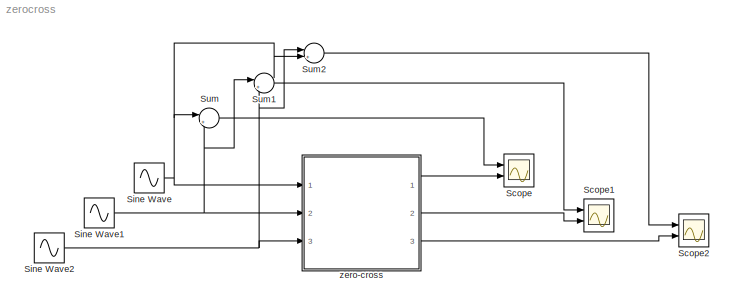
MODEL zerocross
KIND model
BLOCK [Scope] Scope
  Floating = off
  NumInputPorts = 2
  Ports = [2]
  SID = 1
  ScopeSpecificationString = C++SS(StrPVP('Location','[5, 53, 1029, 771]'),StrPVP('Open','on'),StrPVP('TickLabels','OneTimeTick'),StrPVP('ZoomMode','on'),MxPVP('AxesTitles',54,'struct(''axes1'',''%<SignalLabel>'',''axes2'',''%<SignalLabel>'')'),StrPVP('Grid','on'),StrPVP('TimeRange','auto'),StrPVP('YMin','-5~-5'),StrPVP('YMax','5~5'),StrPVP('SaveToWorkspace','off'),StrPVP('SaveName','ScopeData'),StrPVP('DataFormat','Structure...<+172ch>
BLOCK [Scope] Scope1
  Floating = off
  NumInputPorts = 2
  Ports = [2]
  SID = 2
  ScopeSpecificationString = C++SS(StrPVP('Location','[188, 365, 512, 604]'),StrPVP('Open','off'),StrPVP('TickLabels','OneTimeTick'),StrPVP('ZoomMode','on'),MxPVP('AxesTitles',54,'struct(''axes1'',''%<SignalLabel>'',''axes2'',''%<SignalLabel>'')'),StrPVP('Grid','on'),StrPVP('TimeRange','auto'),StrPVP('YMin','-5~-5'),StrPVP('YMax','5~5'),StrPVP('SaveToWorkspace','off'),StrPVP('SaveName','ScopeData1'),StrPVP('DataFormat','Struc...<+176ch>
BLOCK [Scope] Scope2
  Floating = off
  NumInputPorts = 2
  Ports = [2]
  SID = 3
  ScopeSpecificationString = C++SS(StrPVP('Location','[188, 365, 512, 604]'),StrPVP('Open','off'),StrPVP('TickLabels','OneTimeTick'),StrPVP('ZoomMode','on'),MxPVP('AxesTitles',54,'struct(''axes1'',''%<SignalLabel>'',''axes2'',''%<SignalLabel>'')'),StrPVP('Grid','on'),StrPVP('TimeRange','auto'),StrPVP('YMin','-5~-5'),StrPVP('YMax','5~5'),StrPVP('SaveToWorkspace','off'),StrPVP('SaveName','ScopeData2'),StrPVP('DataFormat','Struc...<+176ch>
BLOCK [Sin] Sine Wave
  Frequency = 10
  Ports = [0, 1]
  SID = 4
  SampleTime = 0
BLOCK [Sin] Sine Wave1
  Frequency = 10
  Phase = 2*pi/3
  Ports = [0, 1]
  SID = 5
  SampleTime = 0
BLOCK [Sin] Sine Wave2
  Frequency = 10
  Phase = -2*pi/3
  Ports = [0, 1]
  SID = 6
  SampleTime = 0
BLOCK [Sum] Sum
  IconShape = round
  Inputs = |+-
  Ports = [2, 1]
  SID = 7
BLOCK [Sum] Sum1
  IconShape = round
  Inputs = |+-
  Ports = [2, 1]
  SID = 8
BLOCK [Sum] Sum2
  IconShape = round
  Inputs = |+-
  Ports = [2, 1]
  SID = 9
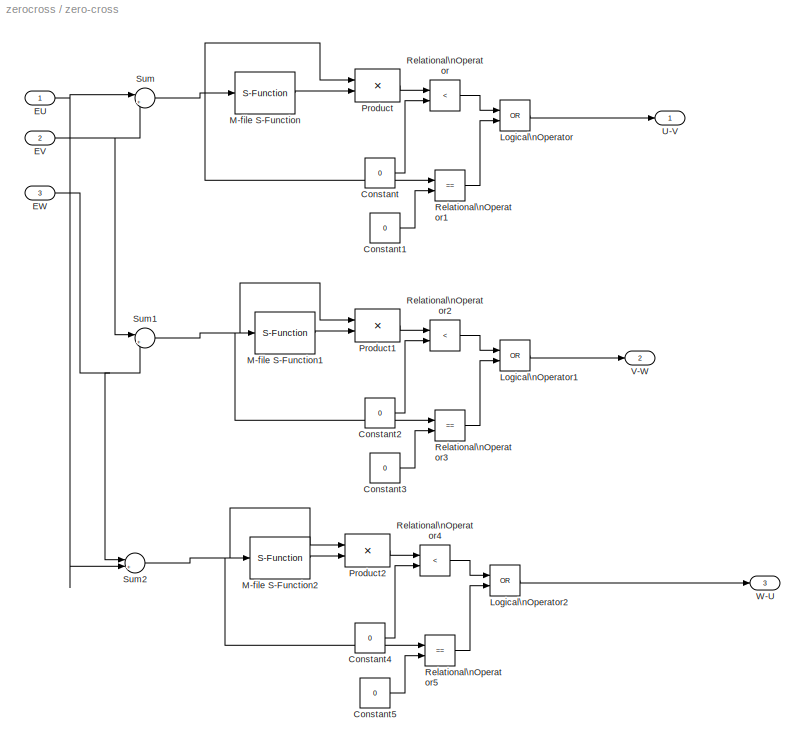
BLOCK [SubSystem] zero-cross
  Ports = [3, 3]
  RequestExecContextInheritance = off
  SID = 10
BLOCK [Constant] zero-cross/Constant
  SID = 14
  Value = 0
BLOCK [Constant] zero-cross/Constant1
  SID = 15
  Value = 0
BLOCK [Constant] zero-cross/Constant2
  SID = 16
  Value = 0
BLOCK [Constant] zero-cross/Constant3
  SID = 17
  Value = 0
BLOCK [Constant] zero-cross/Constant4
  SID = 18
  Value = 0
BLOCK [Constant] zero-cross/Constant5
  SID = 19
  Value = 0
BLOCK [Inport] zero-cross/EU
  IconDisplay = Port number
  SID = 11
BLOCK [Inport] zero-cross/EV
  IconDisplay = Port number
  Port = 2
  SID = 12
BLOCK [Inport] zero-cross/EW
  IconDisplay = Port number
  Port = 3
  SID = 13
BLOCK [Logic] zero-cross/Logical\nOperator
  Operator = OR
  Ports = [2, 1]
  SID = 20
BLOCK [Logic] zero-cross/Logical\nOperator1
  Operator = OR
  Ports = [2, 1]
  SID = 21
BLOCK [Logic] zero-cross/Logical\nOperator2
  Operator = OR
  Ports = [2, 1]
  SID = 22
BLOCK [S-Function] zero-cross/M-file S-Function
  EnableBusSupport = off
  FunctionName = sfundsc2
  Ports = [1, 1]
  SFcnIsStateOwnerBlock = off
  SFunctionDeploymentMode = off
  SID = 23
BLOCK [S-Function] zero-cross/M-file S-Function1
  EnableBusSupport = off
  FunctionName = sfundsc2
  Ports = [1, 1]
  SFcnIsStateOwnerBlock = off
  SFunctionDeploymentMode = off
  SID = 24
BLOCK [S-Function] zero-cross/M-file S-Function2
  EnableBusSupport = off
  FunctionName = sfundsc2
  Ports = [1, 1]
  SFcnIsStateOwnerBlock = off
  SFunctionDeploymentMode = off
  SID = 25
BLOCK [Product] zero-cross/Product
  Ports = [2, 1]
  SID = 26
BLOCK [Product] zero-cross/Product1
  Ports = [2, 1]
  SID = 27
BLOCK [Product] zero-cross/Product2
  Ports = [2, 1]
  SID = 28
BLOCK [RelationalOperator] zero-cross/Relational\nOperator
  Operator = <
  Ports = [2, 1]
  SID = 29
BLOCK [RelationalOperator] zero-cross/Relational\nOperator1
  Operator = ==
  Ports = [2, 1]
  SID = 30
BLOCK [RelationalOperator] zero-cross/Relational\nOperator2
  Operator = <
  Ports = [2, 1]
  SID = 31
BLOCK [RelationalOperator] zero-cross/Relational\nOperator3
  Operator = ==
  Ports = [2, 1]
  SID = 32
BLOCK [RelationalOperator] zero-cross/Relational\nOperator4
  Operator = <
  Ports = [2, 1]
  SID = 33
BLOCK [RelationalOperator] zero-cross/Relational\nOperator5
  Operator = ==
  Ports = [2, 1]
  SID = 34
BLOCK [Sum] zero-cross/Sum
  IconShape = round
  Inputs = |+-
  Ports = [2, 1]
  SID = 35
BLOCK [Sum] zero-cross/Sum1
  IconShape = round
  Inputs = |+-
  Ports = [2, 1]
  SID = 36
BLOCK [Sum] zero-cross/Sum2
  IconShape = round
  Inputs = |+-
  Ports = [2, 1]
  SID = 37
BLOCK [Outport] zero-cross/U-V
  IconDisplay = Port number
  SID = 38
BLOCK [Outport] zero-cross/V-W
  IconDisplay = Port number
  Port = 2
  SID = 39
BLOCK [Outport] zero-cross/W-U
  IconDisplay = Port number
  Port = 3
  SID = 40
NET Sine Wave1:1 -> Sum1:1, Sum:2, zero-cross:2
NET Sine Wave2:1 -> Sum1:2, Sum2:1, zero-cross:3
NET Sine Wave:1 -> Sum2:2, Sum:1, zero-cross:1
LINE Sum1:1 -> Scope1:1
LINE Sum2:1 -> Scope2:1
LINE Sum:1 -> Scope:1
LINE zero-cross/Constant1:1 -> zero-cross/Relational\nOperator1:2
LINE zero-cross/Constant2:1 -> zero-cross/Relational\nOperator2:2
LINE zero-cross/Constant3:1 -> zero-cross/Relational\nOperator3:2
LINE zero-cross/Constant4:1 -> zero-cross/Relational\nOperator4:2
LINE zero-cross/Constant5:1 -> zero-cross/Relational\nOperator5:2
LINE zero-cross/Constant:1 -> zero-cross/Relational\nOperator:2
NET zero-cross/EU:1 -> zero-cross/Sum2:2, zero-cross/Sum:1
NET zero-cross/EV:1 -> zero-cross/Sum1:1, zero-cross/Sum:2
NET zero-cross/EW:1 -> zero-cross/Sum1:2, zero-cross/Sum2:1
LINE zero-cross/Logical\nOperator1:1 -> zero-cross/V-W:1
LINE zero-cross/Logical\nOperator2:1 -> zero-cross/W-U:1
LINE zero-cross/Logical\nOperator:1 -> zero-cross/U-V:1
LINE zero-cross/M-file S-Function1:1 -> zero-cross/Product1:2
LINE zero-cross/M-file S-Function2:1 -> zero-cross/Product2:2
LINE zero-cross/M-file S-Function:1 -> zero-cross/Product:2
LINE zero-cross/Product1:1 -> zero-cross/Relational\nOperator2:1
LINE zero-cross/Product2:1 -> zero-cross/Relational\nOperator4:1
LINE zero-cross/Product:1 -> zero-cross/Relational\nOperator:1
LINE zero-cross/Relational\nOperator1:1 -> zero-cross/Logical\nOperator:2
LINE zero-cross/Relational\nOperator2:1 -> zero-cross/Logical\nOperator1:1
LINE zero-cross/Relational\nOperator3:1 -> zero-cross/Logical\nOperator1:2
LINE zero-cross/Relational\nOperator4:1 -> zero-cross/Logical\nOperator2:1
LINE zero-cross/Relational\nOperator5:1 -> zero-cross/Logical\nOperator2:2
LINE zero-cross/Relational\nOperator:1 -> zero-cross/Logical\nOperator:1
NET zero-cross/Sum1:1 -> zero-cross/M-file S-Function1:1, zero-cross/Product1:1, zero-cross/Relational\nOperator3:1
NET zero-cross/Sum2:1 -> zero-cross/M-file S-Function2:1, zero-cross/Product2:1, zero-cross/Relational\nOperator5:1
NET zero-cross/Sum:1 -> zero-cross/M-file S-Function:1, zero-cross/Product:1, zero-cross/Relational\nOperator1:1
LINE zero-cross:1 -> Scope:2
LINE zero-cross:2 -> Scope1:2
LINE zero-cross:3 -> Scope2:2
note: NET lines group one-source signal fan-out (src -> all destinations, sorted); 1:1 wires keep LINE
